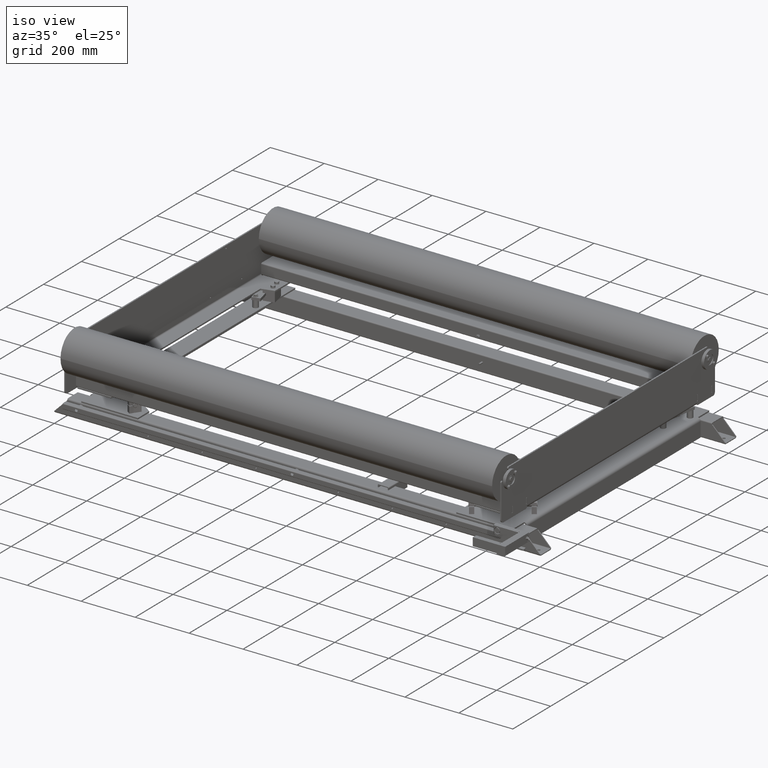
[diagram: clean part render]
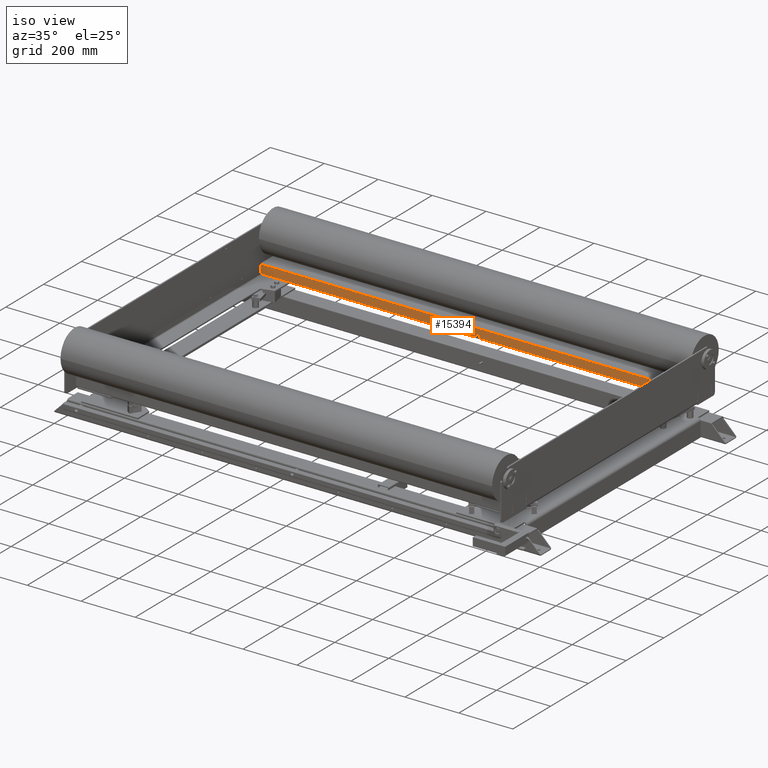
[diagram: same view with one face highlighted and labeled with its STEP entity id]
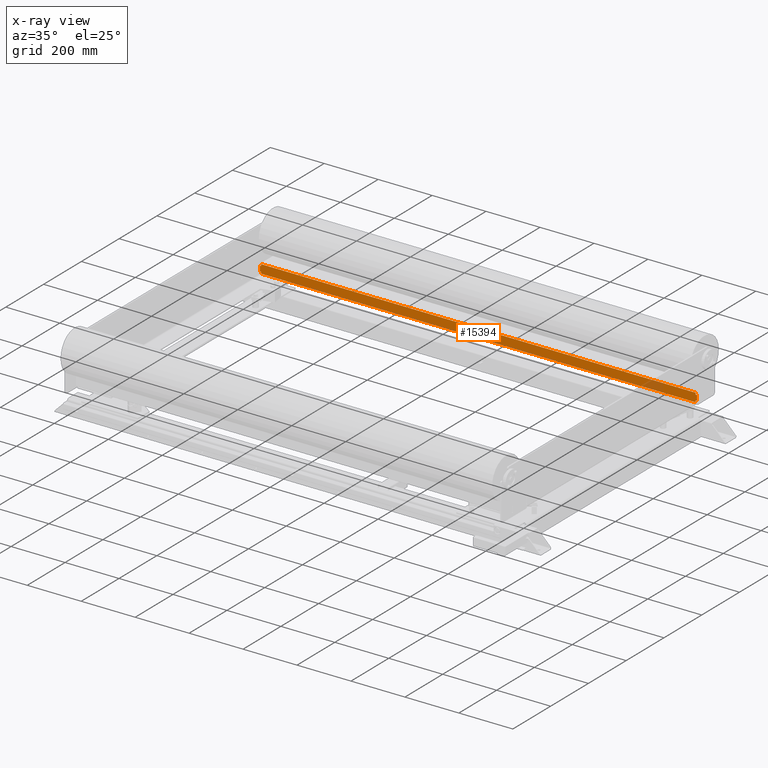
[diagram: x-ray of the same camera — body ghosted, the highlighted face saturated]
A machine part, iso view. The second image highlights one B-rep face of the part: STEP entity #15394.
The next image is the same camera in x-ray: the body ghosted, the highlighted face saturated — about 4% of this face is hidden behind the body in this view.
In plain terms, the highlighted planar face has unit normal (0, -1, 0).
Its self-contained STEP definition (entity closure, byte-faithful):
#13999=CARTESIAN_POINT('',(1211.0,-40.0,-12.576499999999996));
#14000=VERTEX_POINT('',#13999);
#14009=CARTESIAN_POINT('',(1211.0,-40.0,-7.423499999999997));
#14010=VERTEX_POINT('',#14009);
#14011=CARTESIAN_POINT('',(1211.0,-40.0,-9.999999999999996));
#14012=DIRECTION('',(0.0,1.0,0.0));
#14013=DIRECTION('',(0.0,0.0,-1.0));
#14014=AXIS2_PLACEMENT_3D('',#14011,#14012,#14013);
#14015=CIRCLE('',#14014,2.576500000000000);
#14016=EDGE_CURVE('',#14010,#14000,#14015,.T.);
#14458=CARTESIAN_POINT('',(405.500000000000000,-40.0,-16.000000000000004));
#14459=VERTEX_POINT('',#14458);
#14467=CARTESIAN_POINT('',(405.500000000000000,-40.0,-9.999999999999995));
#14468=VERTEX_POINT('',#14467);
#14469=CARTESIAN_POINT('',(405.500000000000000,-40.0,-16.000000000000004));
#14470=DIRECTION('',(0.0,0.0,1.0));
#14471=VECTOR('',#14470,6.000000000000009);
#14472=LINE('',#14469,#14471);
#14473=EDGE_CURVE('',#14459,#14468,#14472,.T.);
#14619=CARTESIAN_POINT('',(2016.500000000000000,-40.0,-9.999999999999995));
#14620=VERTEX_POINT('',#14619);
#14627=CARTESIAN_POINT('',(2016.500000000000000,-40.0,-16.000000000000004));
#14628=VERTEX_POINT('',#14627);
#14629=CARTESIAN_POINT('',(2016.500000000000000,-40.0,-16.000000000000004));
#14630=DIRECTION('',(0.0,0.0,1.0));
#14631=VECTOR('',#14630,6.000000000000009);
#14632=LINE('',#14629,#14631);
#14633=EDGE_CURVE('',#14628,#14620,#14632,.T.);
#14716=CARTESIAN_POINT('',(2021.500000000000000,-40.0,9.999999999999986));
#14717=VERTEX_POINT('',#14716);
#14734=CARTESIAN_POINT('',(2016.500000000000000,-40.0,9.999999999999986));
#14735=VERTEX_POINT('',#14734);
#14742=CARTESIAN_POINT('',(2016.500000000000000,-40.0,9.999999999999986));
#14743=DIRECTION('',(1.0,0.0,0.0));
#14744=VECTOR('',#14743,5.0);
#14745=LINE('',#14742,#14744);
#14746=EDGE_CURVE('',#14735,#14717,#14745,.T.);
#14758=CARTESIAN_POINT('',(2021.500000000000000,-40.0,-9.999999999999995));
#14759=VERTEX_POINT('',#14758);
#14766=CARTESIAN_POINT('',(2016.500000000000000,-40.0,-9.999999999999995));
#14767=DIRECTION('',(1.0,0.0,0.0));
#14768=VECTOR('',#14767,5.0);
#14769=LINE('',#14766,#14768);
#14770=EDGE_CURVE('',#14620,#14759,#14769,.T.);
#14788=CARTESIAN_POINT('',(2021.500000000000000,-40.0,-9.999999999999995));
#14789=DIRECTION('',(0.0,0.0,1.0));
#14790=VECTOR('',#14789,19.999999999999979);
#14791=LINE('',#14788,#14790);
#14792=EDGE_CURVE('',#14759,#14717,#14791,.T.);
#14969=CARTESIAN_POINT('',(2016.500000000000000,-40.0,16.000000000000004));
#14970=VERTEX_POINT('',#14969);
#14978=CARTESIAN_POINT('',(2016.500000000000000,-40.0,9.999999999999986));
#14979=DIRECTION('',(0.0,0.0,1.0));
#14980=VECTOR('',#14979,6.000000000000018);
#14981=LINE('',#14978,#14980);
#14982=EDGE_CURVE('',#14735,#14970,#14981,.T.);
#15113=CARTESIAN_POINT('',(400.500000000000000,-40.0,10.000000000000004));
#15114=VERTEX_POINT('',#15113);
#15121=CARTESIAN_POINT('',(405.500000000000000,-40.0,10.000000000000004));
#15122=VERTEX_POINT('',#15121);
#15123=CARTESIAN_POINT('',(405.500000000000000,-40.0,10.000000000000004));
#15124=DIRECTION('',(-1.0,0.0,0.0));
#15125=VECTOR('',#15124,5.0);
#15126=LINE('',#15123,#15125);
#15127=EDGE_CURVE('',#15122,#15114,#15126,.T.);
#15151=CARTESIAN_POINT('',(400.500000000000000,-40.0,-9.999999999999995));
#15152=VERTEX_POINT('',#15151);
#15168=CARTESIAN_POINT('',(405.500000000000000,-40.0,-9.999999999999995));
#15169=DIRECTION('',(-1.0,0.0,0.0));
#15170=VECTOR('',#15169,5.0);
#15171=LINE('',#15168,#15170);
#15172=EDGE_CURVE('',#14468,#15152,#15171,.T.);
#15190=CARTESIAN_POINT('',(400.500000000000000,-40.0,10.000000000000004));
#15191=DIRECTION('',(0.0,0.0,-1.0));
#15192=VECTOR('',#15191,20.0);
#15193=LINE('',#15190,#15192);
#15194=EDGE_CURVE('',#15114,#15152,#15193,.T.);
#15246=CARTESIAN_POINT('',(405.500000000000000,-40.0,16.000000000000004));
#15247=VERTEX_POINT('',#15246);
#15248=CARTESIAN_POINT('',(405.500000000000000,-40.0,10.000000000000004));
#15249=DIRECTION('',(0.0,0.0,1.0));
#15250=VECTOR('',#15249,6.0);
#15251=LINE('',#15248,#15250);
#15252=EDGE_CURVE('',#15122,#15247,#15251,.T.);
#15351=CARTESIAN_POINT('',(405.500000000000000,-40.0,16.000000000000004));
#15352=DIRECTION('',(1.0,0.0,0.0));
#15353=VECTOR('',#15352,1611.0);
#15354=LINE('',#15351,#15353);
#15355=EDGE_CURVE('',#15247,#14970,#15354,.T.);
#15360=CARTESIAN_POINT('',(405.500000000000000,-40.0,-20.000000000000004));
#15361=DIRECTION('',(0.0,-1.0,0.0));
#15362=DIRECTION('',(0.0,0.0,-1.0));
#15363=AXIS2_PLACEMENT_3D('',#15360,#15361,#15362);
#15364=PLANE('',#15363);
#15365=ORIENTED_EDGE('',*,*,#15355,.F.);
#15366=ORIENTED_EDGE('',*,*,#15252,.F.);
#15367=ORIENTED_EDGE('',*,*,#15127,.T.);
#15368=ORIENTED_EDGE('',*,*,#15194,.T.);
#15369=ORIENTED_EDGE('',*,*,#15172,.F.);
#15370=ORIENTED_EDGE('',*,*,#14473,.F.);
#15371=CARTESIAN_POINT('',(2016.500000000000000,-40.0,-16.000000000000004));
#15372=DIRECTION('',(-1.0,0.0,0.0));
#15373=VECTOR('',#15372,1611.0);
#15374=LINE('',#15371,#15373);
#15375=EDGE_CURVE('',#14628,#14459,#15374,.T.);
#15376=ORIENTED_EDGE('',*,*,#15375,.F.);
#15377=ORIENTED_EDGE('',*,*,#14633,.T.);
#15378=ORIENTED_EDGE('',*,*,#14770,.T.);
#15379=ORIENTED_EDGE('',*,*,#14792,.T.);
#15380=ORIENTED_EDGE('',*,*,#14746,.F.);
#15381=ORIENTED_EDGE('',*,*,#14982,.T.);
#15382=EDGE_LOOP('',(#15365,#15366,#15367,#15368,#15369,#15370,#15376,#15377,#15378,#15379,#15380,#15381));
#15383=FACE_OUTER_BOUND('',#15382,.T.);
#15384=CARTESIAN_POINT('',(1211.0,-40.0,-9.999999999999996));
#15385=DIRECTION('',(0.0,1.0,0.0));
#15386=DIRECTION('',(0.0,0.0,-1.0));
#15387=AXIS2_PLACEMENT_3D('',#15384,#15385,#15386);
#15388=CIRCLE('',#15387,2.576500000000000);
#15389=EDGE_CURVE('',#14000,#14010,#15388,.T.);
#15390=ORIENTED_EDGE('',*,*,#15389,.T.);
#15391=ORIENTED_EDGE('',*,*,#14016,.T.);
#15392=EDGE_LOOP('',(#15390,#15391));
#15393=FACE_BOUND('',#15392,.T.);
#15394=ADVANCED_FACE('',(#15383,#15393),#15364,.T.);